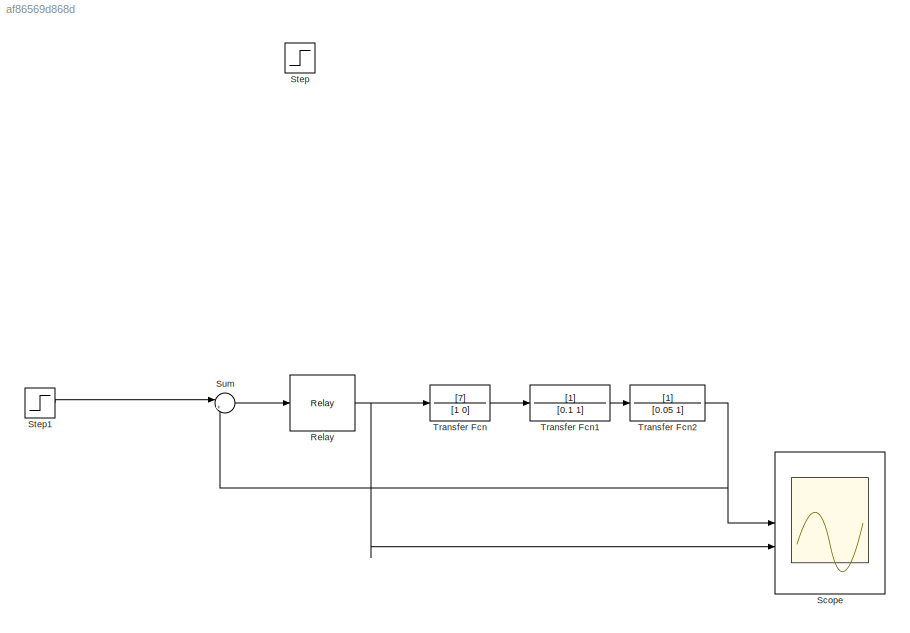
MODEL slx_af86569d868d
KIND model
CONFIG AbsTol = auto
CONFIG EnableMultiTasking = off
CONFIG FixedStep = auto
CONFIG MaxStep = auto
CONFIG MinStep = auto
CONFIG RelTol = 1e-3
CONFIG SampleTimeConstraint = Unconstrained
CONFIG SolverName = VariableStepAuto
CONFIG StartTime = 0.0
CONFIG StopTime = 10
BLOCK [Relay] Relay
  OffOutputValue = -12
  OffSwitchValue = -1.5
  OnOutputValue = 12
  OnSwitchValue = 1.5
BLOCK [Scope] Scope
  Floating = off
  NumInputPorts = 2
  ScopeSpecificationString = Simulink.scopes.TimeScopeBlockCfg('CurrentConfiguration', extmgr.ConfigurationSet(extmgr.Configuration('Core','General UI',true,'FigureColor',[1 1 1]),extmgr.Configuration('Core','Source UI',true),extmgr.Configuration('Sources','WiredSimulink',true),extmgr.Configuration('Visuals','Time Domain',true,'SerializedDisplays',{struct('MinYLimReal','-8.9026','MaxYLimReal','13.30043','YLabelReal','','MinYL...<+2230ch>
BLOCK [Step] Step
  After = 0
  Before = 5
  SampleTime = 0
BLOCK [Step] Step1
  After = 0
  Before = 5
  SampleTime = 0
BLOCK [Sum] Sum
  Inputs = |+-
BLOCK [TransferFcn] Transfer Fcn
  Denominator = [1 0]
  Numerator = [7]
BLOCK [TransferFcn] Transfer Fcn1
  Denominator = [0.1 1]
BLOCK [TransferFcn] Transfer Fcn2
  Denominator = [0.05 1]
NET Relay:1 -> Scope:2, Transfer Fcn:1
LINE Step1:1 -> Sum:1
LINE Sum:1 -> Relay:1
LINE Transfer Fcn1:1 -> Transfer Fcn2:1
NET Transfer Fcn2:1 -> Scope:1, Sum:2
LINE Transfer Fcn:1 -> Transfer Fcn1:1
note: NET lines group one-source signal fan-out (src -> all destinations, sorted); 1:1 wires keep LINE
